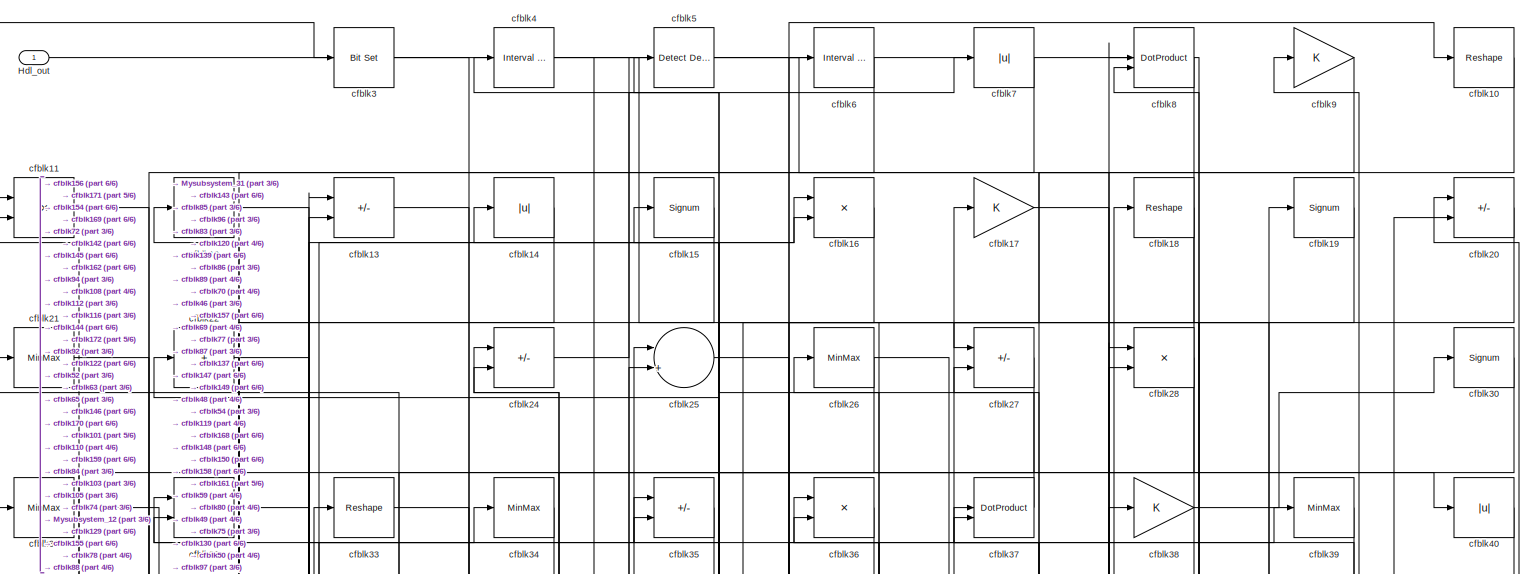
[diagram: root canvas - part 1/6, full width, top band]
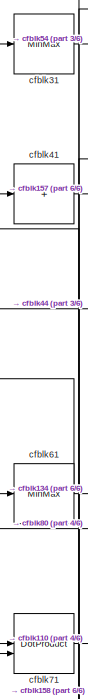
[diagram: root canvas - part 2/6, top left region]
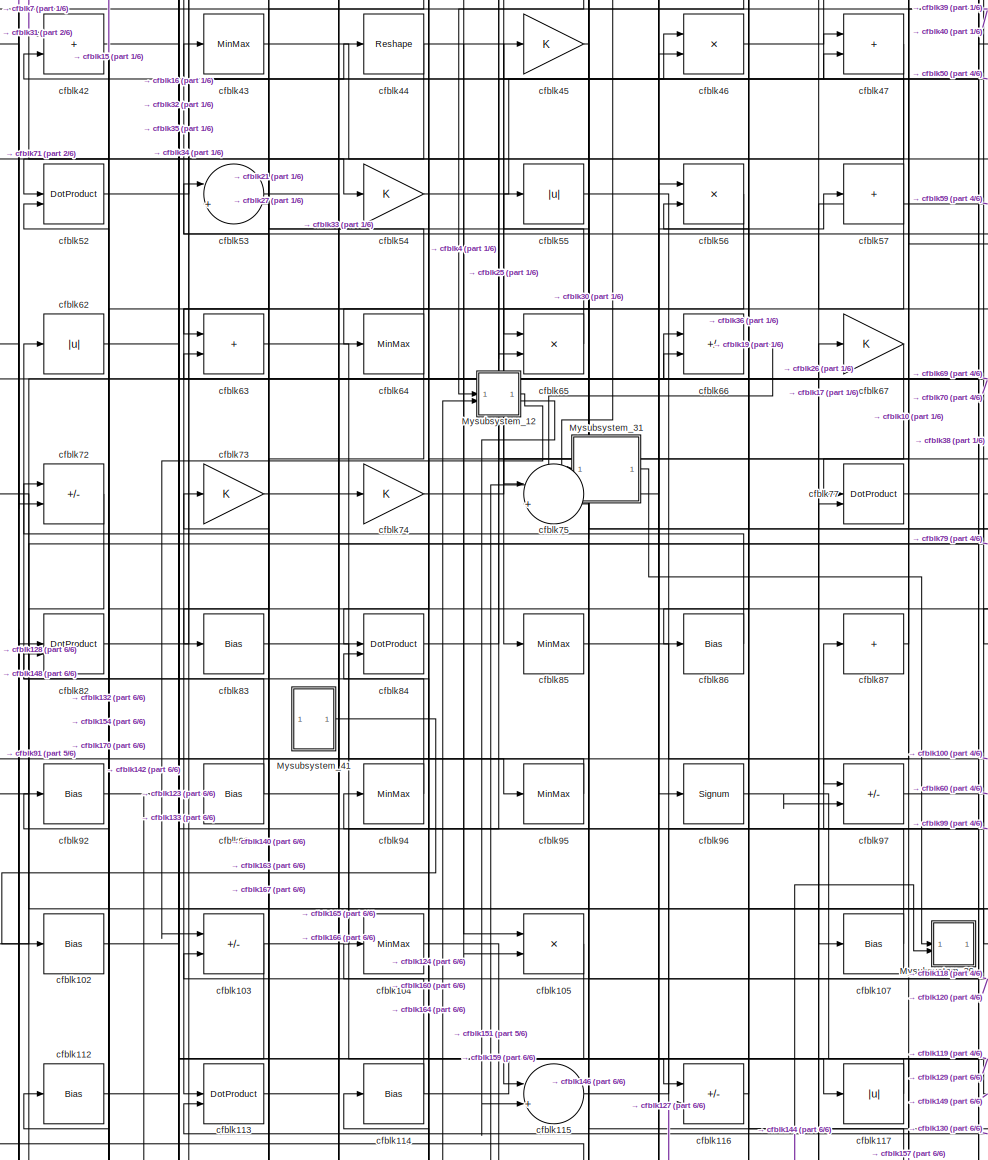
[diagram: root canvas - part 3/6, central region]
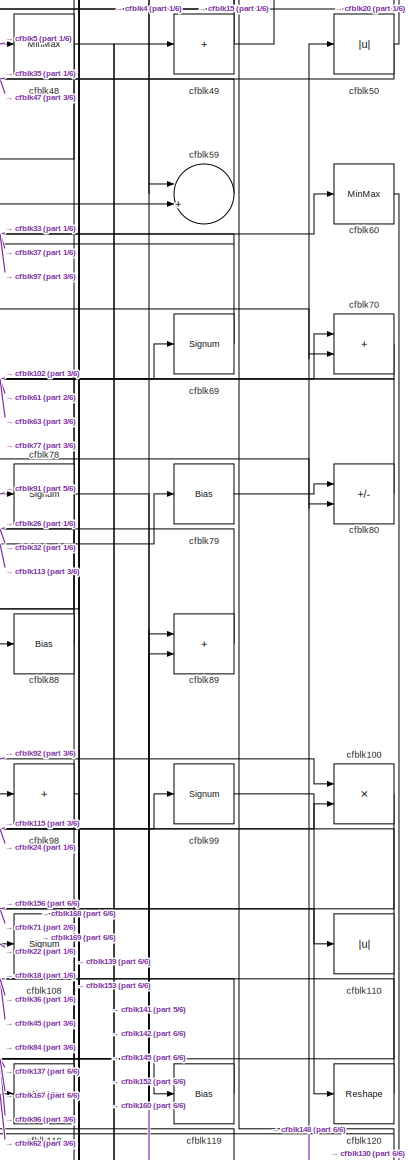
[diagram: root canvas - part 4/6, middle right region]
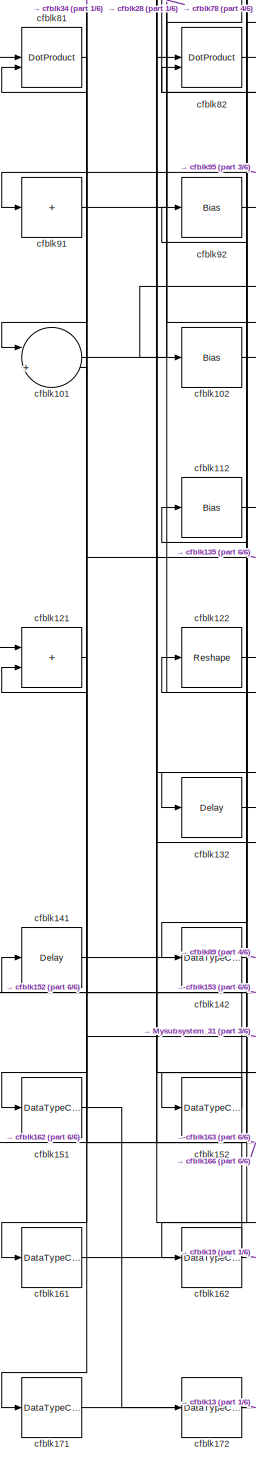
[diagram: root canvas - part 5/6, bottom left region]
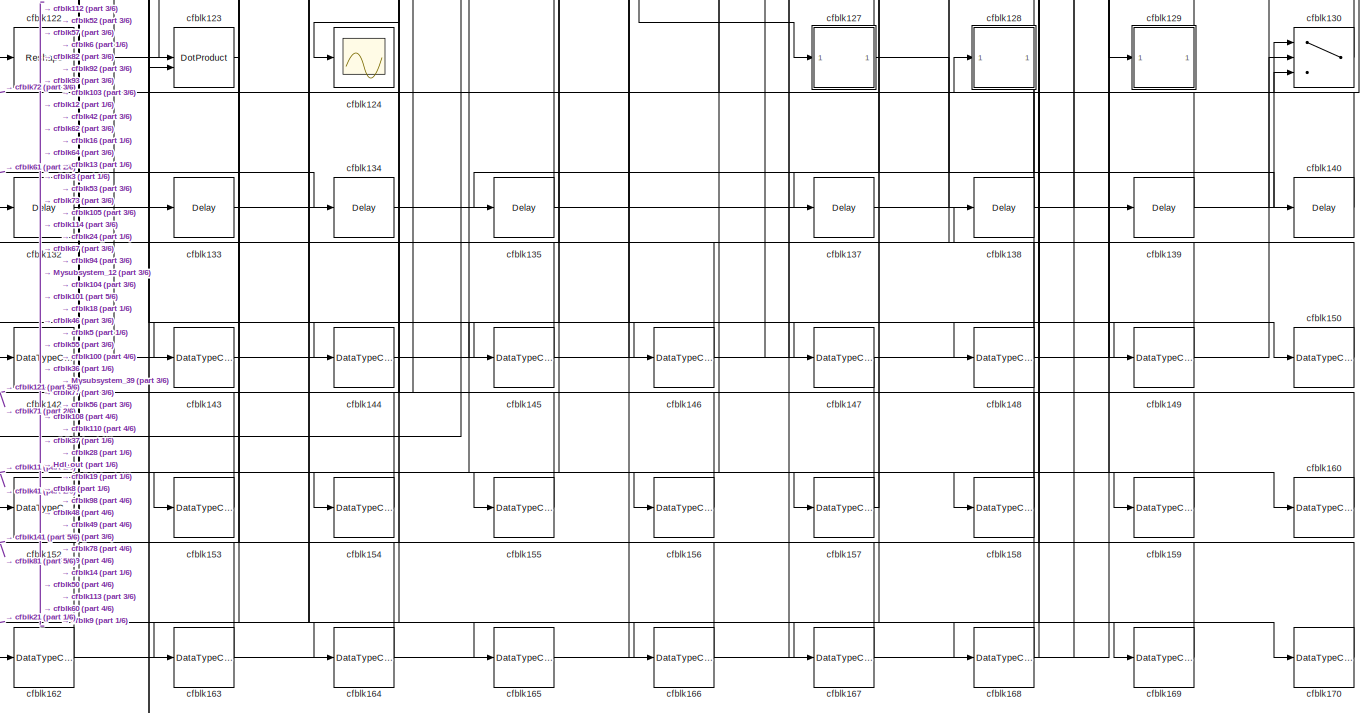
[diagram: root canvas - part 6/6, full width, bottom band]
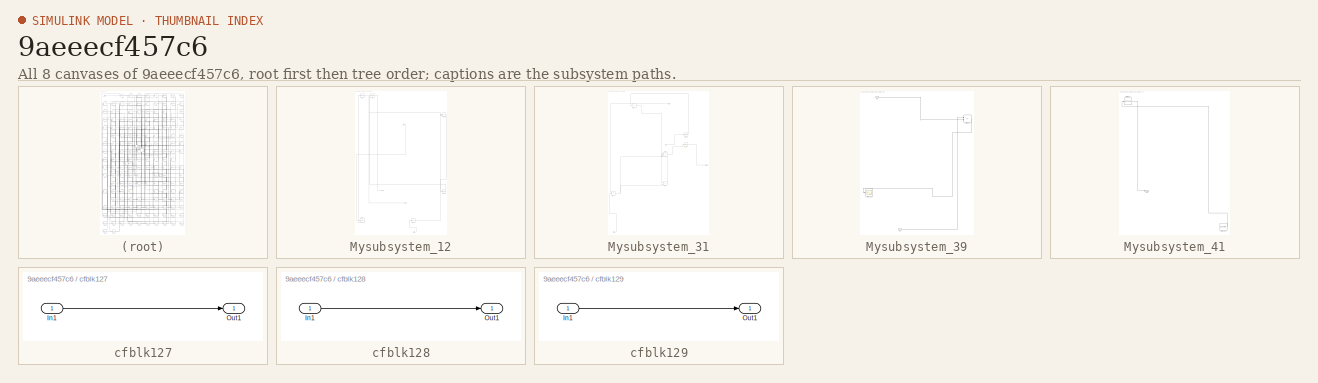
[diagram: thumbnail index - all 8 canvases of the model, root first then tree order]
MODEL slx_9aeeecf457c6
KIND model
CONFIG AbsTol = auto
CONFIG EnableMultiTasking = off
CONFIG FixedStep = auto
CONFIG MaxStep = auto
CONFIG MinStep = auto
CONFIG RelTol = 1e-3
CONFIG SampleTimeConstraint = Unconstrained
CONFIG SolverName = VariableStepAuto
CONFIG StartTime = 0.0
CONFIG StopTime = 10.0
BLOCK [Outport] Hdl_out
  OutDataTypeStr = uint8
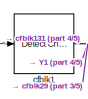
[diagram: Mysubsystem_12 - part 1/5, top left region]
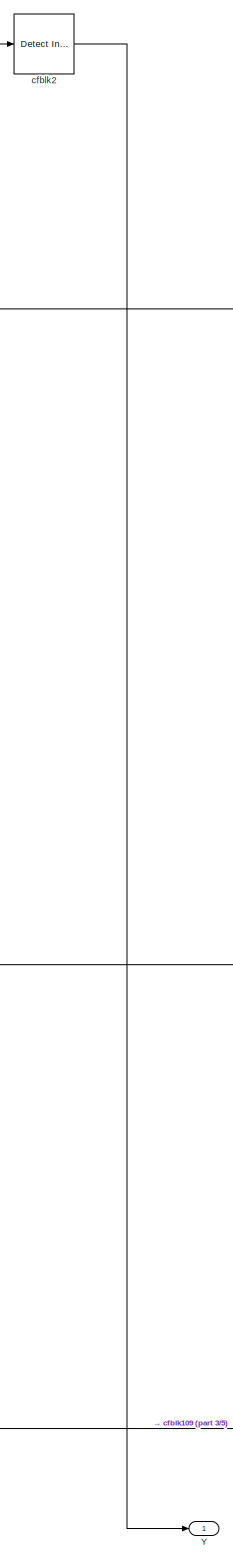
[diagram: Mysubsystem_12 - part 2/5, middle left region]
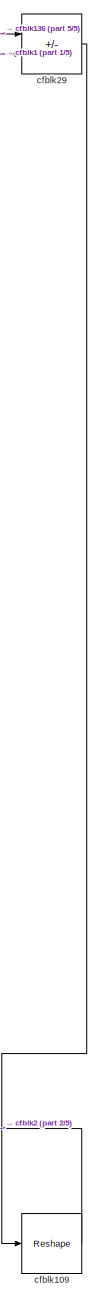
[diagram: Mysubsystem_12 - part 3/5, middle right region]
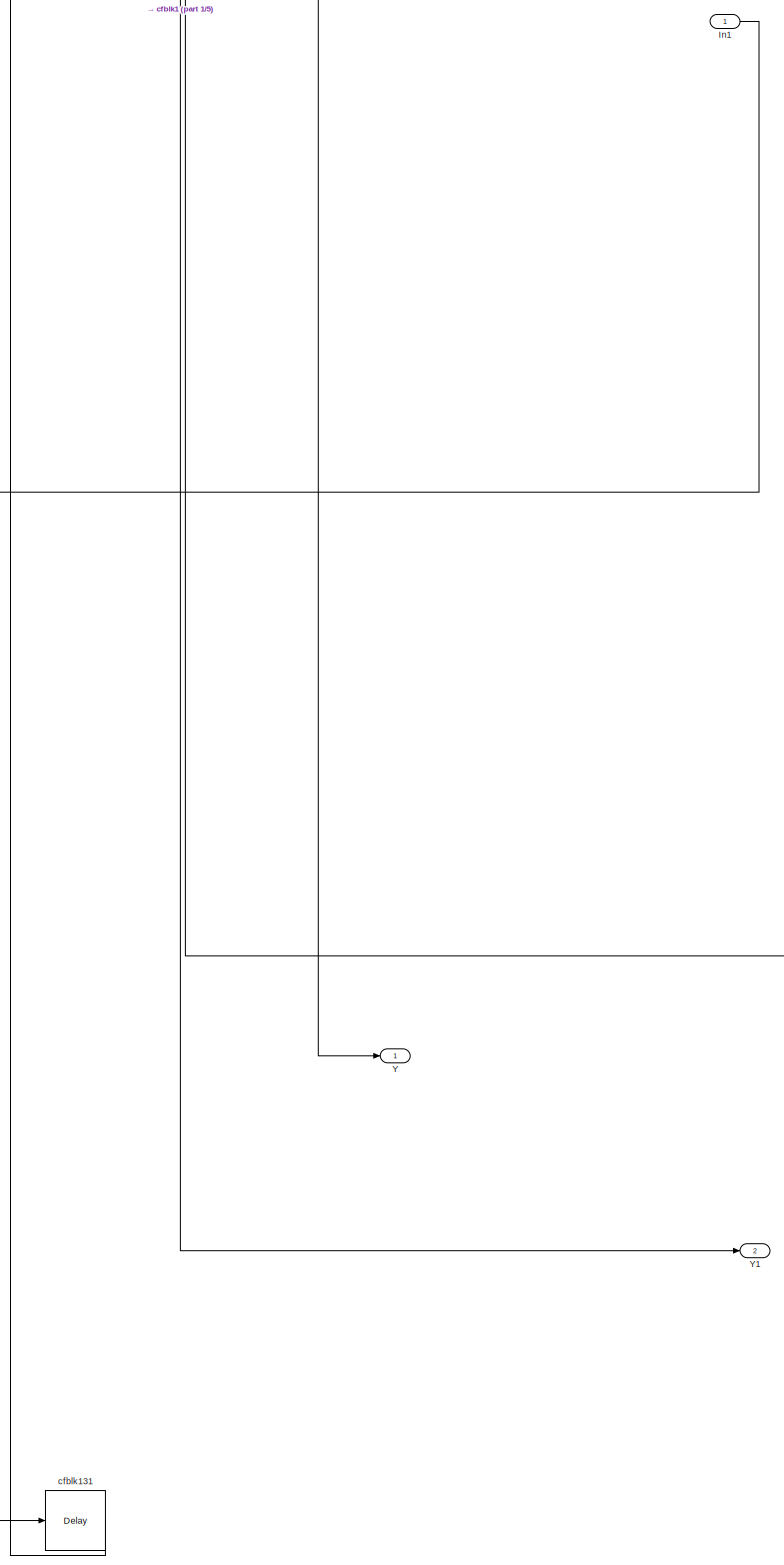
[diagram: Mysubsystem_12 - part 4/5, middle left region]
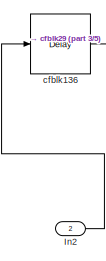
[diagram: Mysubsystem_12 - part 5/5, bottom center region]
BLOCK [SubSystem] Mysubsystem_12
  RTWFcnName = Mysubsystem_12
  RTWFcnNameOpts = User specified
  RTWFileNameOpts = Use function name
  RTWSystemCode = Reusable function
  TreatAsAtomicUnit = on
BLOCK [Inport] Mysubsystem_12/In1
BLOCK [Inport] Mysubsystem_12/In2
  Port = 2
BLOCK [Outport] Mysubsystem_12/Y
BLOCK [Outport] Mysubsystem_12/Y1
  Port = 2
BLOCK [Reference] Mysubsystem_12/cfblk1  REF=simulink/Logic and Bit
Operations/Detect
Change
  LibrarySourceBlock = hdlsllib/Logic and Bit\nOperations/Detect\nChange
  SourceBlock = simulink/Logic and Bit\nOperations/Detect\nChange
  SourceType = Detect Change
BLOCK [Reshape] Mysubsystem_12/cfblk109
BLOCK [Delay] Mysubsystem_12/cfblk131
  InputPortMap = u0
  SampleTime = 1
BLOCK [Delay] Mysubsystem_12/cfblk136
  InputPortMap = u0
  SampleTime = 1
BLOCK [Reference] Mysubsystem_12/cfblk2  REF=simulink/Logic and Bit
Operations/Detect
Increase
  LibrarySourceBlock = hdlsllib/Logic and Bit\nOperations/Detect\nIncrease
  SourceBlock = simulink/Logic and Bit\nOperations/Detect\nIncrease
  SourceType = Detect Increase
BLOCK [Sum] Mysubsystem_12/cfblk29
  IconShape = rectangular
  Inputs = +-
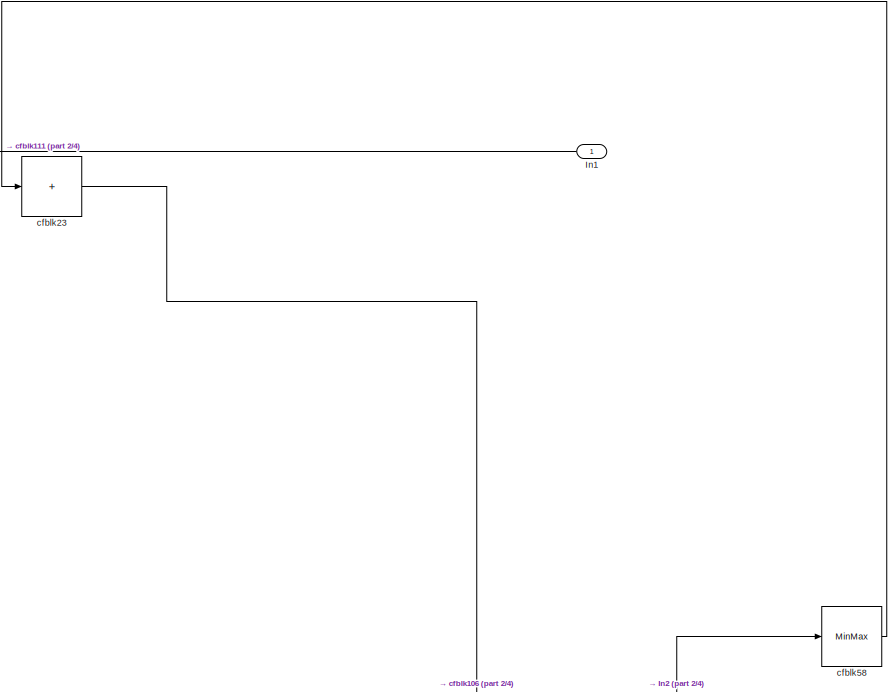
[diagram: Mysubsystem_31 - part 1/4, top center region]
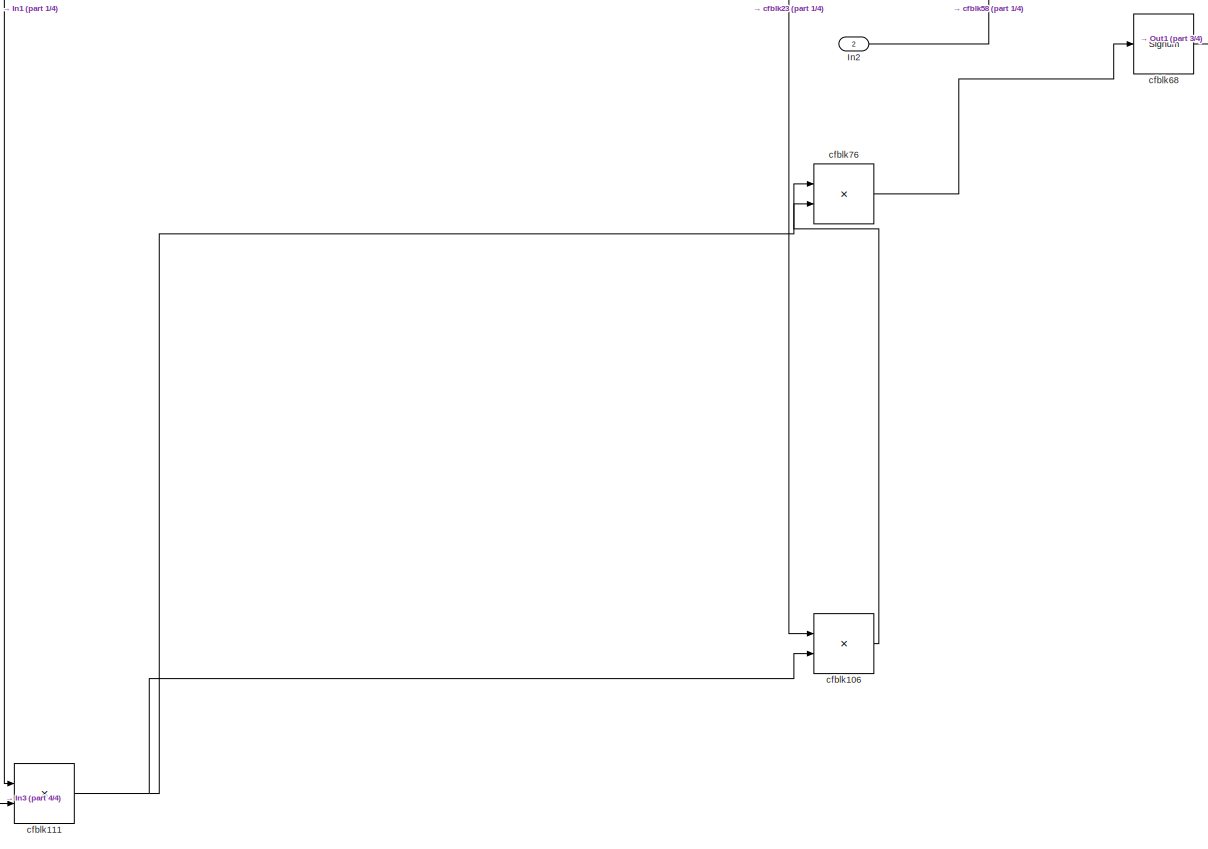
[diagram: Mysubsystem_31 - part 2/4, full width, middle band]
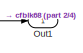
[diagram: Mysubsystem_31 - part 3/4, middle right region]
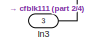
[diagram: Mysubsystem_31 - part 4/4, bottom left region]
BLOCK [SubSystem] Mysubsystem_31
  RTWFcnName = Mysubsystem_31
  RTWFcnNameOpts = User specified
  RTWFileNameOpts = Use function name
  RTWSystemCode = Reusable function
  TreatAsAtomicUnit = on
BLOCK [Inport] Mysubsystem_31/In1
BLOCK [Inport] Mysubsystem_31/In2
  Port = 2
BLOCK [Inport] Mysubsystem_31/In3
  Port = 3
BLOCK [Outport] Mysubsystem_31/Out1
BLOCK [Product] Mysubsystem_31/cfblk106
  Inputs = */
  RndMeth = Zero
  SaturateOnIntegerOverflow = on
BLOCK [Product] Mysubsystem_31/cfblk111
  Inputs = */
  RndMeth = Zero
  SaturateOnIntegerOverflow = on
BLOCK [Sum] Mysubsystem_31/cfblk23
  IconShape = rectangular
  Inputs = +
BLOCK [MinMax] Mysubsystem_31/cfblk58
BLOCK [Signum] Mysubsystem_31/cfblk68
BLOCK [Product] Mysubsystem_31/cfblk76
  Inputs = */
  RndMeth = Zero
  SaturateOnIntegerOverflow = on
BLOCK [SubSystem] Mysubsystem_39
  RTWFcnName = Mysubsystem_39
  RTWFcnNameOpts = User specified
  RTWFileNameOpts = Use function name
  RTWSystemCode = Reusable function
  TreatAsAtomicUnit = on
BLOCK [Inport] Mysubsystem_39/In1
BLOCK [Inport] Mysubsystem_39/In2
  Port = 2
BLOCK [Scope] Mysubsystem_39/cfblk125
  Floating = off
  NumInputPorts = 1
  ScopeSpecificationString = Simulink.scopes.TimeScopeBlockCfg('CurrentConfiguration', extmgr.ConfigurationSet(extmgr.Configuration('Core','General UI',true),extmgr.Configuration('Core','Source UI',true),extmgr.Configuration('Sources','WiredSimulink',true,'DataLoggingVariableName','ScopeData2','DataLoggingSaveFormat','Array','DataLoggingLimitDataPoints',true,'DataLoggingDecimation','1'),extmgr.Configuration('Visuals','Time Do...<+868ch>
BLOCK [Sum] Mysubsystem_39/cfblk90
  IconShape = rectangular
  Inputs = +-
BLOCK [SubSystem] Mysubsystem_41
  RTWFcnName = Mysubsystem_41
  RTWFcnNameOpts = User specified
  RTWFileNameOpts = Use function name
  RTWSystemCode = Reusable function
  TreatAsAtomicUnit = on
BLOCK [Outport] Mysubsystem_41/Out1
BLOCK [Reference] Mysubsystem_41/cfblk126  REF=hdlsllib/Sources/Counter
Free-Running
  SourceBlock = hdlsllib/Sources/Counter\nFree-Running
  SourceType = Counter Free-Running
BLOCK [Reshape] Mysubsystem_41/cfblk51
BLOCK [Reshape] cfblk10
BLOCK [Product] cfblk100
  Inputs = */
  OutDataTypeStr = uint8
  RndMeth = Zero
  SaturateOnIntegerOverflow = on
BLOCK [Sum] cfblk101
  Inputs = |++
  OutDataTypeStr = uint8
BLOCK [Bias] cfblk102
  Bias = 0.0
  SaturateOnIntegerOverflow = off
BLOCK [Sum] cfblk103
  IconShape = rectangular
  Inputs = +-
  OutDataTypeStr = uint8
BLOCK [MinMax] cfblk104
  OutDataTypeStr = uint8
BLOCK [Product] cfblk105
  Inputs = */
  OutDataTypeStr = uint8
  RndMeth = Zero
  SaturateOnIntegerOverflow = on
BLOCK [Bias] cfblk107
  Bias = 0.0
  SaturateOnIntegerOverflow = off
BLOCK [Signum] cfblk108
BLOCK [Product] cfblk11
  Inputs = */
  OutDataTypeStr = uint8
  RndMeth = Zero
  SaturateOnIntegerOverflow = on
BLOCK [Abs] cfblk110
  OutDataTypeStr = uint8
  SaturateOnIntegerOverflow = off
BLOCK [Bias] cfblk112
  Bias = 0.0
  SaturateOnIntegerOverflow = off
BLOCK [DotProduct] cfblk113
  OutDataTypeStr = uint8
BLOCK [Bias] cfblk114
  Bias = 0.0
  SaturateOnIntegerOverflow = off
BLOCK [Sum] cfblk115
  Inputs = |++
  OutDataTypeStr = uint8
BLOCK [Sum] cfblk116
  IconShape = rectangular
  Inputs = +-
  OutDataTypeStr = uint8
BLOCK [Abs] cfblk117
  OutDataTypeStr = uint8
  SaturateOnIntegerOverflow = off
BLOCK [MinMax] cfblk118
  OutDataTypeStr = uint8
BLOCK [Bias] cfblk119
  Bias = 0.0
  SaturateOnIntegerOverflow = off
BLOCK [Reshape] cfblk12
BLOCK [Reshape] cfblk120
BLOCK [Sum] cfblk121
  IconShape = rectangular
  OutDataTypeStr = uint8
BLOCK [Reshape] cfblk122
BLOCK [DotProduct] cfblk123
  OutDataTypeStr = uint8
BLOCK [Scope] cfblk124
  Floating = off
  NumInputPorts = 1
  ScopeSpecificationString = Simulink.scopes.TimeScopeBlockCfg('CurrentConfiguration', extmgr.ConfigurationSet(extmgr.Configuration('Core','General UI',true),extmgr.Configuration('Core','Source UI',true),extmgr.Configuration('Sources','WiredSimulink',true,'DataLoggingVariableName','ScopeData2','DataLoggingSaveFormat','Array','DataLoggingLimitDataPoints',true,'DataLoggingDecimation','1'),extmgr.Configuration('Visuals','Time Do...<+868ch>
BLOCK [SubSystem] cfblk127
  LibrarySourceBlock = hdlsllib/Ports &\nSubsystems/Subsystem
BLOCK [Inport] cfblk127/In1
BLOCK [Outport] cfblk127/Out1
BLOCK [SubSystem] cfblk128
  LibrarySourceBlock = hdlsllib/Ports &\nSubsystems/Subsystem
BLOCK [Inport] cfblk128/In1
BLOCK [Outport] cfblk128/Out1
BLOCK [SubSystem] cfblk129
  LibrarySourceBlock = hdlsllib/Ports &\nSubsystems/Subsystem
BLOCK [Inport] cfblk129/In1
BLOCK [Outport] cfblk129/Out1
BLOCK [Sum] cfblk13
  IconShape = rectangular
  Inputs = +-
  OutDataTypeStr = uint8
BLOCK [Switch] cfblk130
  InputSameDT = off
  OutDataTypeStr = uint8
  SaturateOnIntegerOverflow = off
BLOCK [Delay] cfblk132
  InputPortMap = u0
  SampleTime = 1
BLOCK [Delay] cfblk133
  InputPortMap = u0
  SampleTime = 1
BLOCK [Delay] cfblk134
  InputPortMap = u0
  SampleTime = 1
BLOCK [Delay] cfblk135
  InputPortMap = u0
  SampleTime = 1
BLOCK [Delay] cfblk137
  InputPortMap = u0
  SampleTime = 1
BLOCK [Delay] cfblk138
  InputPortMap = u0
  SampleTime = 1
BLOCK [Delay] cfblk139
  InputPortMap = u0
  SampleTime = 1
BLOCK [Abs] cfblk14
  OutDataTypeStr = uint8
  SaturateOnIntegerOverflow = off
BLOCK [Delay] cfblk140
  InputPortMap = u0
  SampleTime = 1
BLOCK [Delay] cfblk141
  InputPortMap = u0
  SampleTime = 1
BLOCK [DataTypeConversion] cfblk142
  OutDataTypeStr = uint8
  RndMeth = Floor
  SaturateOnIntegerOverflow = off
BLOCK [DataTypeConversion] cfblk143
  OutDataTypeStr = uint8
  RndMeth = Floor
  SaturateOnIntegerOverflow = off
BLOCK [DataTypeConversion] cfblk144
  OutDataTypeStr = uint8
  RndMeth = Floor
  SaturateOnIntegerOverflow = off
BLOCK [DataTypeConversion] cfblk145
  OutDataTypeStr = uint8
  RndMeth = Floor
  SaturateOnIntegerOverflow = off
BLOCK [DataTypeConversion] cfblk146
  OutDataTypeStr = uint8
  RndMeth = Floor
  SaturateOnIntegerOverflow = off
BLOCK [DataTypeConversion] cfblk147
  OutDataTypeStr = uint8
  RndMeth = Floor
  SaturateOnIntegerOverflow = off
BLOCK [DataTypeConversion] cfblk148
  OutDataTypeStr = uint8
  RndMeth = Floor
  SaturateOnIntegerOverflow = off
BLOCK [DataTypeConversion] cfblk149
  OutDataTypeStr = uint8
  RndMeth = Floor
  SaturateOnIntegerOverflow = off
BLOCK [Signum] cfblk15
BLOCK [DataTypeConversion] cfblk150
  OutDataTypeStr = uint8
  RndMeth = Floor
  SaturateOnIntegerOverflow = off
BLOCK [DataTypeConversion] cfblk151
  OutDataTypeStr = uint8
  RndMeth = Floor
  SaturateOnIntegerOverflow = off
BLOCK [DataTypeConversion] cfblk152
  OutDataTypeStr = uint8
  RndMeth = Floor
  SaturateOnIntegerOverflow = off
BLOCK [DataTypeConversion] cfblk153
  OutDataTypeStr = uint8
  RndMeth = Floor
  SaturateOnIntegerOverflow = off
BLOCK [DataTypeConversion] cfblk154
  OutDataTypeStr = uint8
  RndMeth = Floor
  SaturateOnIntegerOverflow = off
BLOCK [DataTypeConversion] cfblk155
  OutDataTypeStr = uint8
  RndMeth = Floor
  SaturateOnIntegerOverflow = off
BLOCK [DataTypeConversion] cfblk156
  OutDataTypeStr = uint8
  RndMeth = Floor
  SaturateOnIntegerOverflow = off
BLOCK [DataTypeConversion] cfblk157
  OutDataTypeStr = uint8
  RndMeth = Floor
  SaturateOnIntegerOverflow = off
BLOCK [DataTypeConversion] cfblk158
  OutDataTypeStr = uint8
  RndMeth = Floor
  SaturateOnIntegerOverflow = off
BLOCK [DataTypeConversion] cfblk159
  OutDataTypeStr = uint8
  RndMeth = Floor
  SaturateOnIntegerOverflow = off
BLOCK [Product] cfblk16
  Inputs = */
  OutDataTypeStr = uint8
  RndMeth = Zero
  SaturateOnIntegerOverflow = on
BLOCK [DataTypeConversion] cfblk160
  OutDataTypeStr = uint8
  RndMeth = Floor
  SaturateOnIntegerOverflow = off
BLOCK [DataTypeConversion] cfblk161
  OutDataTypeStr = uint8
  RndMeth = Floor
  SaturateOnIntegerOverflow = off
BLOCK [DataTypeConversion] cfblk162
  OutDataTypeStr = uint8
  RndMeth = Floor
  SaturateOnIntegerOverflow = off
BLOCK [DataTypeConversion] cfblk163
  OutDataTypeStr = uint8
  RndMeth = Floor
  SaturateOnIntegerOverflow = off
BLOCK [DataTypeConversion] cfblk164
  OutDataTypeStr = uint8
  RndMeth = Floor
  SaturateOnIntegerOverflow = off
BLOCK [DataTypeConversion] cfblk165
  OutDataTypeStr = uint8
  RndMeth = Floor
  SaturateOnIntegerOverflow = off
BLOCK [DataTypeConversion] cfblk166
  OutDataTypeStr = uint8
  RndMeth = Floor
  SaturateOnIntegerOverflow = off
BLOCK [DataTypeConversion] cfblk167
  OutDataTypeStr = uint8
  RndMeth = Floor
  SaturateOnIntegerOverflow = off
BLOCK [DataTypeConversion] cfblk168
  OutDataTypeStr = uint8
  RndMeth = Floor
  SaturateOnIntegerOverflow = off
BLOCK [DataTypeConversion] cfblk169
  OutDataTypeStr = uint8
  RndMeth = Floor
  SaturateOnIntegerOverflow = off
BLOCK [Gain] cfblk17
  OutDataTypeStr = uint8
BLOCK [DataTypeConversion] cfblk170
  OutDataTypeStr = uint8
  RndMeth = Floor
  SaturateOnIntegerOverflow = off
BLOCK [DataTypeConversion] cfblk171
  OutDataTypeStr = uint8
  RndMeth = Floor
  SaturateOnIntegerOverflow = off
BLOCK [DataTypeConversion] cfblk172
  OutDataTypeStr = uint8
  RndMeth = Floor
  SaturateOnIntegerOverflow = off
BLOCK [Reshape] cfblk18
BLOCK [Signum] cfblk19
BLOCK [Sum] cfblk20
  IconShape = rectangular
  Inputs = +-
  OutDataTypeStr = uint8
BLOCK [MinMax] cfblk21
  OutDataTypeStr = uint8
BLOCK [Sum] cfblk22
  IconShape = rectangular
  Inputs = +
  OutDataTypeStr = uint8
BLOCK [Sum] cfblk24
  IconShape = rectangular
  Inputs = +-
  OutDataTypeStr = uint8
BLOCK [Sum] cfblk25
  Inputs = |++
  OutDataTypeStr = uint8
BLOCK [MinMax] cfblk26
  OutDataTypeStr = uint8
BLOCK [Sum] cfblk27
  IconShape = rectangular
  Inputs = +-
  OutDataTypeStr = uint8
BLOCK [Product] cfblk28
  Inputs = */
  OutDataTypeStr = uint8
  RndMeth = Zero
  SaturateOnIntegerOverflow = on
BLOCK [Reference] cfblk3  REF=simulink/Logic and Bit
Operations/Bit Set
  LibrarySourceBlock = hdlsllib/Logic and Bit\nOperations/Bit Set
  SourceBlock = simulink/Logic and Bit\nOperations/Bit Set
  SourceType = Bit Set
BLOCK [Signum] cfblk30
BLOCK [MinMax] cfblk31
  OutDataTypeStr = uint8
BLOCK [Product] cfblk32
  Inputs = */
  OutDataTypeStr = uint8
  RndMeth = Zero
  SaturateOnIntegerOverflow = on
BLOCK [Reshape] cfblk33
BLOCK [MinMax] cfblk34
  OutDataTypeStr = uint8
BLOCK [Sum] cfblk35
  IconShape = rectangular
  Inputs = +-
  OutDataTypeStr = uint8
BLOCK [Product] cfblk36
  Inputs = */
  OutDataTypeStr = uint8
  RndMeth = Zero
  SaturateOnIntegerOverflow = on
BLOCK [DotProduct] cfblk37
  OutDataTypeStr = uint8
BLOCK [Gain] cfblk38
  OutDataTypeStr = uint8
BLOCK [MinMax] cfblk39
  OutDataTypeStr = uint8
BLOCK [Reference] cfblk4  REF=hdlsllib/Logic and Bit
Operations/Interval Test
  SourceBlock = hdlsllib/Logic and Bit\nOperations/Interval Test
  SourceType = Interval Test
BLOCK [Abs] cfblk40
  OutDataTypeStr = uint8
  SaturateOnIntegerOverflow = off
BLOCK [Sum] cfblk41
  IconShape = rectangular
  Inputs = +
  OutDataTypeStr = uint8
BLOCK [Sum] cfblk42
  IconShape = rectangular
  OutDataTypeStr = uint8
BLOCK [MinMax] cfblk43
  OutDataTypeStr = uint8
BLOCK [Reshape] cfblk44
BLOCK [Gain] cfblk45
  OutDataTypeStr = uint8
BLOCK [Product] cfblk46
  Inputs = */
  OutDataTypeStr = uint8
  RndMeth = Zero
  SaturateOnIntegerOverflow = on
BLOCK [Sum] cfblk47
  IconShape = rectangular
  OutDataTypeStr = uint8
BLOCK [MinMax] cfblk48
  OutDataTypeStr = uint8
BLOCK [Sum] cfblk49
  IconShape = rectangular
  Inputs = +
  OutDataTypeStr = uint8
BLOCK [Reference] cfblk5  REF=simulink/Logic and Bit
Operations/Detect
Decrease
  LibrarySourceBlock = hdlsllib/Logic and Bit\nOperations/Detect\nDecrease
  SourceBlock = simulink/Logic and Bit\nOperations/Detect\nDecrease
  SourceType = Detect Decrease
BLOCK [Abs] cfblk50
  OutDataTypeStr = uint8
  SaturateOnIntegerOverflow = off
BLOCK [DotProduct] cfblk52
  OutDataTypeStr = uint8
BLOCK [Sum] cfblk53
  Inputs = |++
  OutDataTypeStr = uint8
BLOCK [Gain] cfblk54
  OutDataTypeStr = uint8
BLOCK [Abs] cfblk55
  OutDataTypeStr = uint8
  SaturateOnIntegerOverflow = off
BLOCK [Product] cfblk56
  Inputs = */
  OutDataTypeStr = uint8
  RndMeth = Zero
  SaturateOnIntegerOverflow = on
BLOCK [Sum] cfblk57
  IconShape = rectangular
  Inputs = +
  OutDataTypeStr = uint8
BLOCK [Sum] cfblk59
  Inputs = |++
  OutDataTypeStr = uint8
BLOCK [Reference] cfblk6  REF=hdlsllib/Logic and Bit
Operations/Interval Test
  SourceBlock = hdlsllib/Logic and Bit\nOperations/Interval Test
  SourceType = Interval Test
BLOCK [MinMax] cfblk60
  OutDataTypeStr = uint8
BLOCK [MinMax] cfblk61
  OutDataTypeStr = uint8
BLOCK [Abs] cfblk62
  OutDataTypeStr = uint8
  SaturateOnIntegerOverflow = off
BLOCK [Sum] cfblk63
  IconShape = rectangular
  OutDataTypeStr = uint8
BLOCK [MinMax] cfblk64
  OutDataTypeStr = uint8
BLOCK [Product] cfblk65
  Inputs = */
  OutDataTypeStr = uint8
  RndMeth = Zero
  SaturateOnIntegerOverflow = on
BLOCK [Sum] cfblk66
  IconShape = rectangular
  Inputs = +-
  OutDataTypeStr = uint8
BLOCK [Gain] cfblk67
  OutDataTypeStr = uint8
BLOCK [Signum] cfblk69
BLOCK [Abs] cfblk7
  OutDataTypeStr = uint8
  SaturateOnIntegerOverflow = off
BLOCK [Sum] cfblk70
  IconShape = rectangular
  OutDataTypeStr = uint8
BLOCK [DotProduct] cfblk71
  OutDataTypeStr = uint8
BLOCK [Sum] cfblk72
  IconShape = rectangular
  Inputs = +-
  OutDataTypeStr = uint8
BLOCK [Gain] cfblk73
  OutDataTypeStr = uint8
BLOCK [Gain] cfblk74
  OutDataTypeStr = uint8
BLOCK [Sum] cfblk75
  Inputs = |++
  OutDataTypeStr = uint8
BLOCK [DotProduct] cfblk77
  OutDataTypeStr = uint8
BLOCK [Signum] cfblk78
BLOCK [Bias] cfblk79
  Bias = 0.0
  SaturateOnIntegerOverflow = off
BLOCK [DotProduct] cfblk8
  OutDataTypeStr = uint8
BLOCK [Sum] cfblk80
  IconShape = rectangular
  Inputs = +-
  OutDataTypeStr = uint8
BLOCK [DotProduct] cfblk81
  OutDataTypeStr = uint8
BLOCK [DotProduct] cfblk82
  OutDataTypeStr = uint8
BLOCK [Bias] cfblk83
  Bias = 0.0
  SaturateOnIntegerOverflow = off
BLOCK [DotProduct] cfblk84
  OutDataTypeStr = uint8
BLOCK [MinMax] cfblk85
  OutDataTypeStr = uint8
BLOCK [Bias] cfblk86
  Bias = 0.0
  SaturateOnIntegerOverflow = off
BLOCK [Sum] cfblk87
  IconShape = rectangular
  Inputs = +
  OutDataTypeStr = uint8
BLOCK [Bias] cfblk88
  Bias = 0.0
  SaturateOnIntegerOverflow = off
BLOCK [Sum] cfblk89
  IconShape = rectangular
  OutDataTypeStr = uint8
BLOCK [Gain] cfblk9
  OutDataTypeStr = uint8
BLOCK [Sum] cfblk91
  IconShape = rectangular
  Inputs = +
  OutDataTypeStr = uint8
BLOCK [Bias] cfblk92
  Bias = 0.0
  SaturateOnIntegerOverflow = off
BLOCK [Bias] cfblk93
  Bias = 0.0
  SaturateOnIntegerOverflow = off
BLOCK [MinMax] cfblk94
  OutDataTypeStr = uint8
BLOCK [MinMax] cfblk95
  OutDataTypeStr = uint8
BLOCK [Signum] cfblk96
BLOCK [Sum] cfblk97
  IconShape = rectangular
  Inputs = +-
  OutDataTypeStr = uint8
BLOCK [Sum] cfblk98
  IconShape = rectangular
  Inputs = +
  OutDataTypeStr = uint8
BLOCK [Signum] cfblk99
LINE Mysubsystem_12/In1:1 -> Mysubsystem_12/cfblk131:1
LINE Mysubsystem_12/In2:1 -> Mysubsystem_12/cfblk136:1
LINE Mysubsystem_12/cfblk109:1 -> Mysubsystem_12/cfblk2:1
LINE Mysubsystem_12/cfblk131:1 -> Mysubsystem_12/cfblk1:1
LINE Mysubsystem_12/cfblk136:1 -> Mysubsystem_12/cfblk29:1
NET Mysubsystem_12/cfblk1:1 -> Mysubsystem_12/Y1:1, Mysubsystem_12/cfblk29:2
LINE Mysubsystem_12/cfblk29:1 -> Mysubsystem_12/cfblk109:1
LINE Mysubsystem_12/cfblk2:1 -> Mysubsystem_12/Y:1
LINE Mysubsystem_12:1 -> cfblk103:1
LINE Mysubsystem_12:2 -> cfblk115:2
LINE Mysubsystem_31/In1:1 -> Mysubsystem_31/cfblk111:1
LINE Mysubsystem_31/In2:1 -> Mysubsystem_31/cfblk58:1
LINE Mysubsystem_31/In3:1 -> Mysubsystem_31/cfblk111:2
LINE Mysubsystem_31/cfblk106:1 -> Mysubsystem_31/cfblk76:2
NET Mysubsystem_31/cfblk111:1 -> Mysubsystem_31/cfblk106:2, Mysubsystem_31/cfblk76:1
LINE Mysubsystem_31/cfblk23:1 -> Mysubsystem_31/cfblk106:1
LINE Mysubsystem_31/cfblk58:1 -> Mysubsystem_31/cfblk23:1
LINE Mysubsystem_31/cfblk68:1 -> Mysubsystem_31/Out1:1
LINE Mysubsystem_31/cfblk76:1 -> Mysubsystem_31/cfblk68:1
LINE Mysubsystem_31:1 -> Mysubsystem_39:1
LINE Mysubsystem_39/In1:1 -> Mysubsystem_39/cfblk90:2
LINE Mysubsystem_39/In2:1 -> Mysubsystem_39/cfblk90:1
LINE Mysubsystem_39/cfblk90:1 -> Mysubsystem_39/cfblk125:1
LINE Mysubsystem_41/cfblk126:1 -> Mysubsystem_41/cfblk51:1
LINE Mysubsystem_41/cfblk51:1 -> Mysubsystem_41/Out1:1
LINE Mysubsystem_41:1 -> cfblk102:1
LINE cfblk100:1 -> cfblk156:1
LINE cfblk101:1 -> cfblk28:1
LINE cfblk102:1 -> cfblk70:1
NET cfblk103:1 -> cfblk123:2, cfblk25:2
LINE cfblk104:1 -> cfblk159:1
LINE cfblk105:1 -> cfblk124:1
LINE cfblk107:1 -> cfblk87:1
LINE cfblk108:1 -> cfblk167:1
LINE cfblk10:1 -> cfblk77:1
NET cfblk110:1 -> cfblk137:1, cfblk24:1
LINE cfblk112:1 -> cfblk35:1
LINE cfblk113:1 -> cfblk79:1
NET cfblk114:1 -> cfblk117:1, cfblk53:1
LINE cfblk115:1 -> cfblk99:1
LINE cfblk116:1 -> cfblk66:1
LINE cfblk117:1 -> cfblk115:1
LINE cfblk118:1 -> cfblk45:1
LINE cfblk119:1 -> cfblk18:1
LINE cfblk11:1 -> cfblk154:1
NET cfblk120:1 -> cfblk36:1, cfblk84:2
LINE cfblk121:1 -> cfblk151:1
LINE cfblk122:1 -> cfblk16:1
LINE cfblk123:1 -> cfblk143:1
LINE cfblk127/In1:1 -> cfblk127/Out1:1
NET cfblk127:1 -> cfblk140:1, cfblk56:2
LINE cfblk128/In1:1 -> cfblk128/Out1:1
LINE cfblk128:1 -> cfblk135:1
LINE cfblk129/In1:1 -> cfblk129/Out1:1
LINE cfblk129:1 -> cfblk14:1
LINE cfblk12:1 -> cfblk144:1
NET cfblk130:1 -> cfblk113:2, cfblk9:1
LINE cfblk132:1 -> cfblk130:2
LINE cfblk133:1 -> cfblk46:2
LINE cfblk134:1 -> cfblk130:3
LINE cfblk135:1 -> cfblk101:2
LINE cfblk137:1 -> cfblk28:2
LINE cfblk138:1 -> cfblk123:1
LINE cfblk139:1 -> cfblk36:2
LINE cfblk13:1 -> cfblk170:1
LINE cfblk140:1 -> cfblk103:2
LINE cfblk141:1 -> cfblk89:1
NET cfblk142:1 -> cfblk89:2, cfblk93:1
LINE cfblk143:1 -> cfblk6:1
NET cfblk144:1 -> Mysubsystem_39:2, cfblk150:1, cfblk77:2
LINE cfblk145:1 -> cfblk12:1
LINE cfblk146:1 -> cfblk55:1
LINE cfblk147:1 -> cfblk3:1
NET cfblk148:1 -> cfblk42:1, cfblk50:1
LINE cfblk149:1 -> cfblk8:1
LINE cfblk14:1 -> cfblk162:1
LINE cfblk150:1 -> cfblk8:2
NET cfblk151:1 -> Mysubsystem_31:3, cfblk172:1
LINE cfblk152:1 -> cfblk121:1
LINE cfblk153:1 -> cfblk121:2
LINE cfblk154:1 -> cfblk52:2
LINE cfblk155:1 -> cfblk11:1
LINE cfblk156:1 -> cfblk11:2
NET cfblk157:1 -> Mysubsystem_12:2, cfblk37:2, cfblk71:1
LINE cfblk158:1 -> cfblk41:1
NET cfblk159:1 -> cfblk24:2, cfblk92:1, cfblk94:1
LINE cfblk15:1 -> cfblk52:1
LINE cfblk160:1 -> cfblk104:1
LINE cfblk161:1 -> cfblk19:1
LINE cfblk162:1 -> cfblk81:1
LINE cfblk163:1 -> cfblk81:2
NET cfblk164:1 -> cfblk56:1, cfblk82:2
LINE cfblk165:1 -> cfblk67:1
NET cfblk166:1 -> cfblk114:1, cfblk141:1, cfblk53:2
LINE cfblk167:1 -> cfblk73:1
NET cfblk168:1 -> Hdl_out:1, cfblk138:1, cfblk49:1
LINE cfblk169:1 -> cfblk98:1
LINE cfblk16:1 -> cfblk116:2
NET cfblk170:1 -> cfblk112:1, cfblk122:1, cfblk82:1
LINE cfblk171:1 -> cfblk13:1
LINE cfblk172:1 -> cfblk13:2
LINE cfblk17:1 -> cfblk40:1
LINE cfblk18:1 -> cfblk155:1
NET cfblk19:1 -> Mysubsystem_31:1, cfblk158:1, cfblk86:1
LINE cfblk20:1 -> cfblk88:1
LINE cfblk21:1 -> cfblk169:1
LINE cfblk22:1 -> cfblk108:1
LINE cfblk24:1 -> cfblk7:1
LINE cfblk25:1 -> cfblk96:1
NET cfblk26:1 -> cfblk70:2, cfblk84:1
LINE cfblk27:1 -> cfblk63:1
LINE cfblk28:1 -> cfblk171:1
LINE cfblk30:1 -> cfblk75:2
LINE cfblk31:1 -> cfblk54:1
LINE cfblk32:1 -> cfblk116:1
LINE cfblk33:1 -> cfblk74:1
LINE cfblk34:1 -> cfblk101:1
LINE cfblk35:1 -> Mysubsystem_12:1
LINE cfblk36:1 -> cfblk83:1
LINE cfblk37:1 -> cfblk4:1
LINE cfblk38:1 -> cfblk30:1
LINE cfblk39:1 -> cfblk75:1
LINE cfblk3:1 -> cfblk146:1
LINE cfblk40:1 -> cfblk97:1
LINE cfblk41:1 -> cfblk157:1
LINE cfblk42:1 -> cfblk133:1
LINE cfblk43:1 -> cfblk65:2
NET cfblk44:1 -> cfblk105:2, cfblk71:2, cfblk85:1
LINE cfblk45:1 -> cfblk65:1
LINE cfblk46:1 -> cfblk17:1
LINE cfblk47:1 -> cfblk64:1
NET cfblk48:1 -> cfblk139:1, cfblk153:1
NET cfblk49:1 -> cfblk15:1, cfblk20:2
NET cfblk4:1 -> cfblk105:1, cfblk59:1, cfblk80:2
NET cfblk50:1 -> cfblk20:1, cfblk47:2
LINE cfblk52:1 -> cfblk34:1
LINE cfblk53:1 -> cfblk165:1
LINE cfblk54:1 -> cfblk38:1
LINE cfblk55:1 -> cfblk127:1
LINE cfblk56:1 -> cfblk113:1
NET cfblk57:1 -> cfblk132:1, cfblk42:2
LINE cfblk59:1 -> cfblk35:2
NET cfblk5:1 -> cfblk10:1, cfblk147:1, cfblk48:1
LINE cfblk60:1 -> cfblk130:1
NET cfblk61:1 -> cfblk134:1, cfblk31:1
NET cfblk62:1 -> cfblk118:1, cfblk149:1
LINE cfblk63:1 -> cfblk129:1
NET cfblk64:1 -> cfblk163:1, cfblk43:1
LINE cfblk65:1 -> cfblk21:1
LINE cfblk66:1 -> Mysubsystem_31:2
LINE cfblk67:1 -> cfblk164:1
NET cfblk69:1 -> cfblk33:1, cfblk37:1
LINE cfblk6:1 -> cfblk142:1
LINE cfblk70:1 -> cfblk63:2
LINE cfblk71:1 -> cfblk110:1
LINE cfblk72:1 -> cfblk128:1
LINE cfblk73:1 -> cfblk166:1
LINE cfblk74:1 -> cfblk25:1
LINE cfblk75:1 -> cfblk57:1
LINE cfblk77:1 -> cfblk69:1
NET cfblk78:1 -> cfblk145:1, cfblk152:1, cfblk160:1, cfblk5:1
LINE cfblk79:1 -> cfblk80:1
LINE cfblk7:1 -> cfblk72:2
LINE cfblk80:1 -> cfblk61:1
LINE cfblk81:1 -> cfblk161:1
NET cfblk82:1 -> cfblk44:1, cfblk46:1
LINE cfblk83:1 -> cfblk95:1
LINE cfblk84:1 -> cfblk47:1
NET cfblk85:1 -> cfblk107:1, cfblk39:1
LINE cfblk86:1 -> cfblk72:1
LINE cfblk87:1 -> cfblk27:2
LINE cfblk88:1 -> cfblk32:1
NET cfblk89:1 -> cfblk22:1, cfblk26:1
LINE cfblk8:1 -> cfblk148:1
LINE cfblk91:1 -> cfblk78:1
NET cfblk92:1 -> cfblk100:1, cfblk100:2, cfblk16:2
NET cfblk93:1 -> cfblk62:1, cfblk66:2
LINE cfblk94:1 -> cfblk32:2
LINE cfblk95:1 -> cfblk91:1
NET cfblk96:1 -> cfblk119:1, cfblk59:2, cfblk97:2
LINE cfblk97:1 -> cfblk60:1
LINE cfblk98:1 -> cfblk168:1
LINE cfblk99:1 -> cfblk120:1
LINE cfblk9:1 -> cfblk27:1
note: NET lines group one-source signal fan-out (src -> all destinations, sorted); 1:1 wires keep LINE
